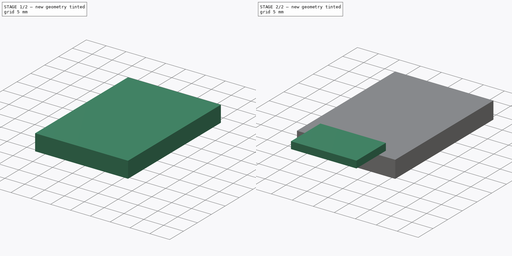
[diagram: build sequence overview — one tinted view per stage of 2, left to right]
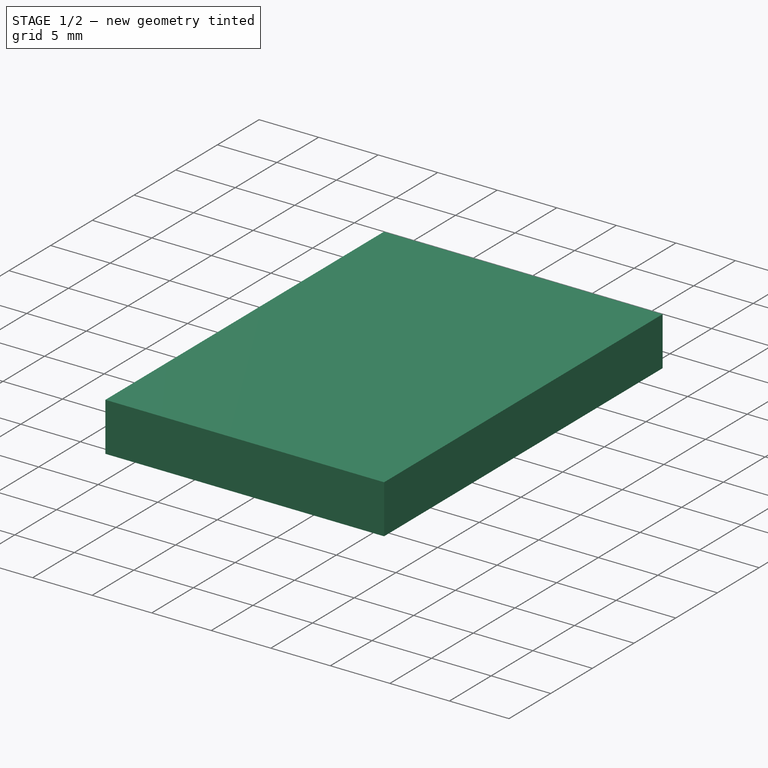
[diagram: stage 1 of 2 — iso view after this stage's code; geometry added in this stage tinted green]
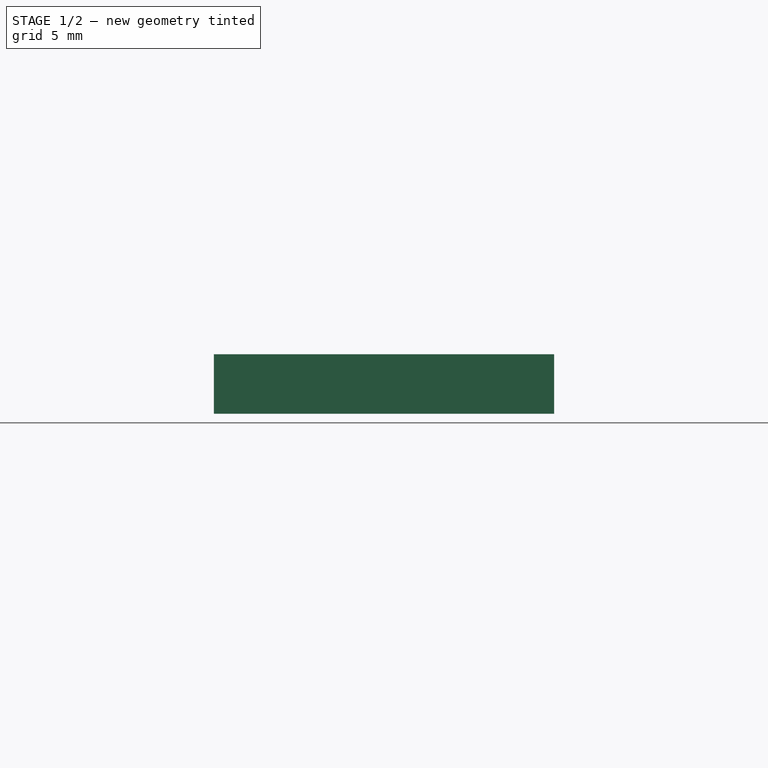
[diagram: stage 1 of 2 — front view after this stage's code; geometry added in this stage tinted green]
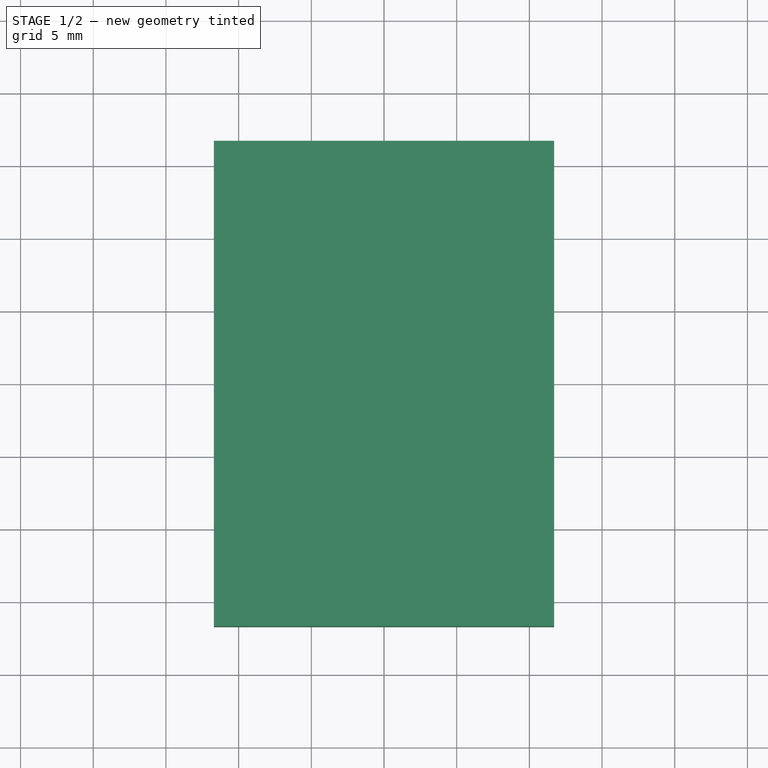
[diagram: stage 1 of 2 — top view after this stage's code; geometry added in this stage tinted green]
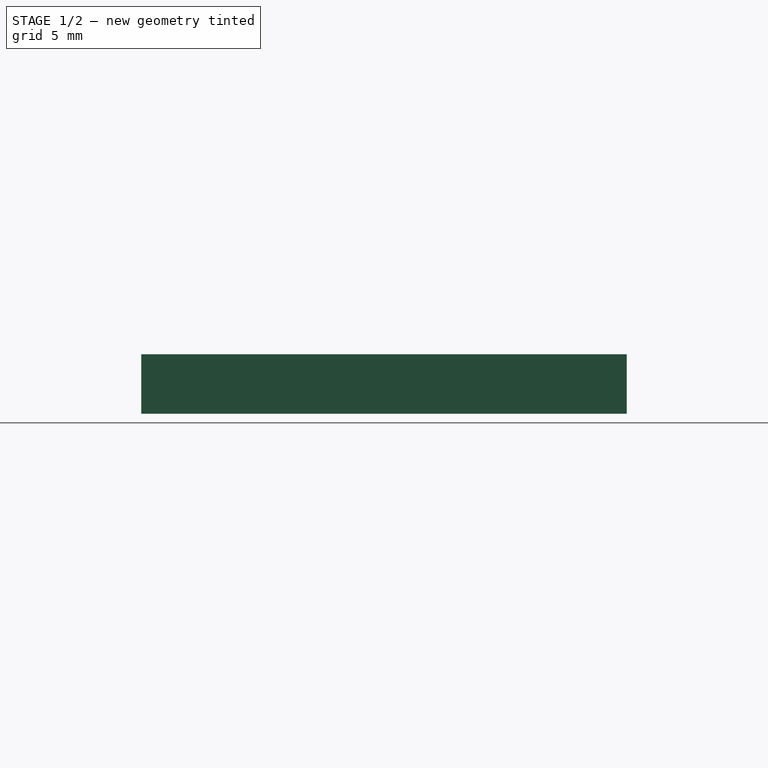
[diagram: stage 1 of 2 — right view after this stage's code; geometry added in this stage tinted green]
FCSTD DOCUMENT  (FreeCAD 0.16R5170 (Git))
Label: moteino
License: CreativeCommons Attribution-ShareAlike
LicenseURL: http://creativecommons.org/licenses/by-sa/4.0/
objects: Sketcher::SketchObject×2, PartDesign::Pad×2
note: 6 computed .brp shape members not serialized (recipe doc carries the construction recipe); baked Part::Feature solids carry a one-line shape summary decoded from their .brp

FEATURE [Sketcher::SketchObject] Sketch
  sketch-geometry (4):
    g0: LineSegment StartX=-11.7 StartY=16.7 StartZ=0 EndX=11.7 EndY=16.7 EndZ=0
    g1: LineSegment StartX=11.7 StartY=16.7 StartZ=0 EndX=11.7 EndY=-16.7 EndZ=0
    g2: LineSegment StartX=11.7 StartY=-16.7 StartZ=0 EndX=-11.7 EndY=-16.7 EndZ=0
    g3: LineSegment StartX=-11.7 StartY=-16.7 StartZ=0 EndX=-11.7 EndY=16.7 EndZ=0
  constraints (11):
    c: Coincident(g0,g1)
    c: Coincident(g1,g2)
    c: Coincident(g2,g3)
    c: Coincident(g3,g0)
    c: Horizontal(g0)
    c: Horizontal(g2)
    c: Vertical(g1)
    c: Vertical(g3)
    c: Symmetric(g1,g0,g-1)
    c: DistanceX(g0) = 23.4
    c: DistanceY(g1) = -33.4
FEATURE [PartDesign::Pad] Pad
  Length = 4.1
  Length2 = 100
  Sketch = -> Sketch
  Type = 0
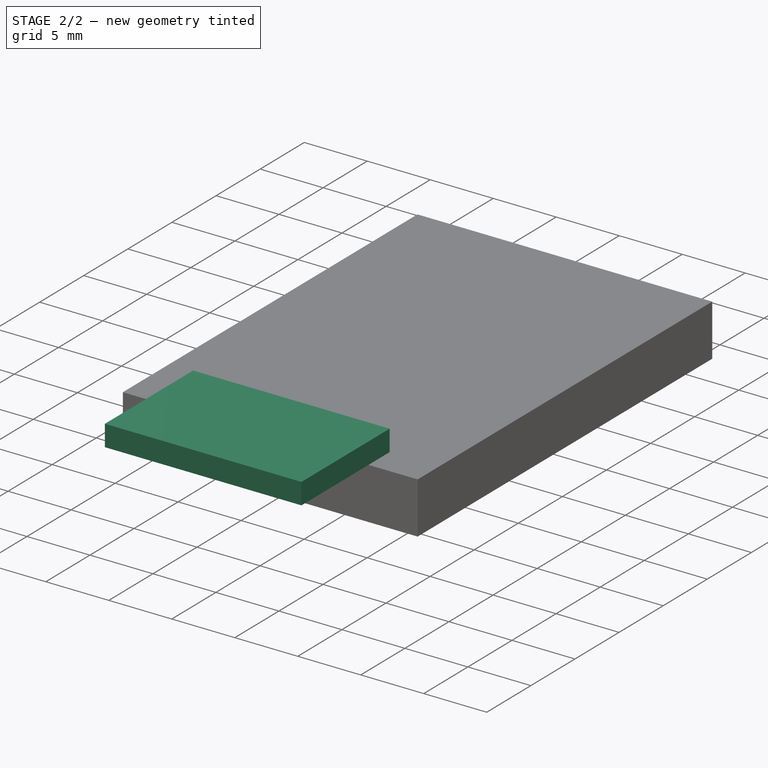
[diagram: stage 2 of 2 — iso view after this stage's code; geometry added in this stage tinted green]
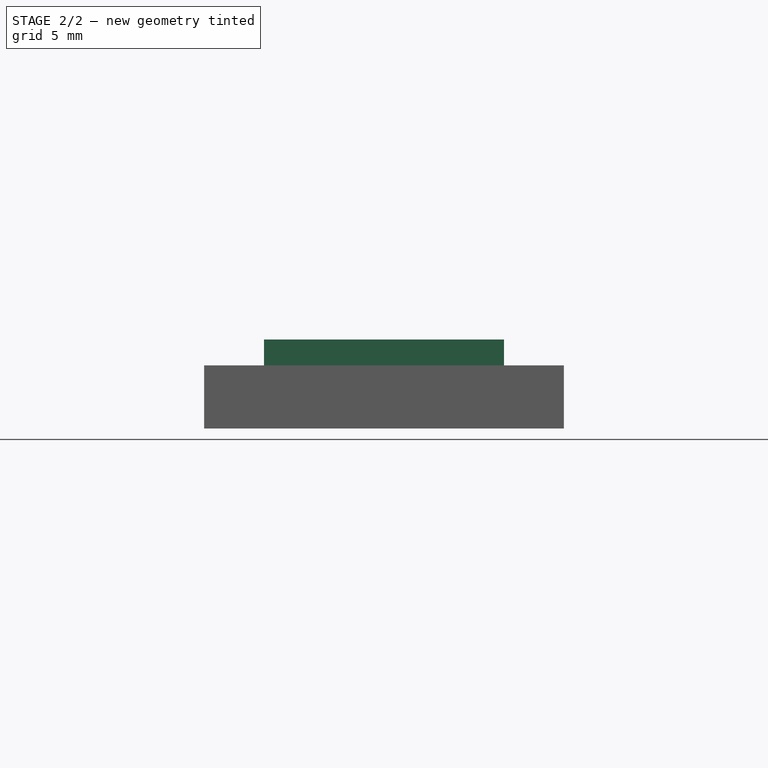
[diagram: stage 2 of 2 — front view after this stage's code; geometry added in this stage tinted green]
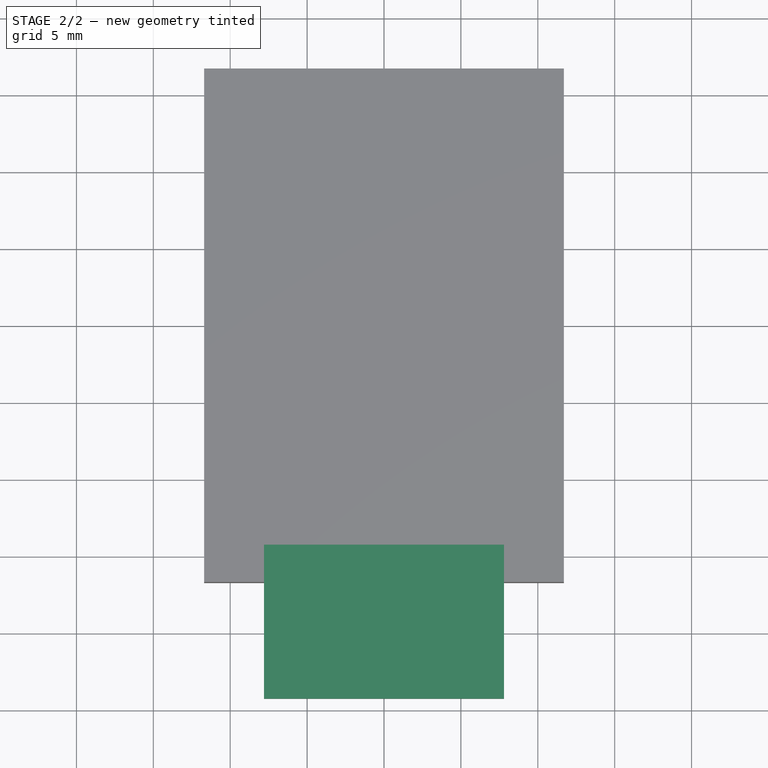
[diagram: stage 2 of 2 — top view after this stage's code; geometry added in this stage tinted green]
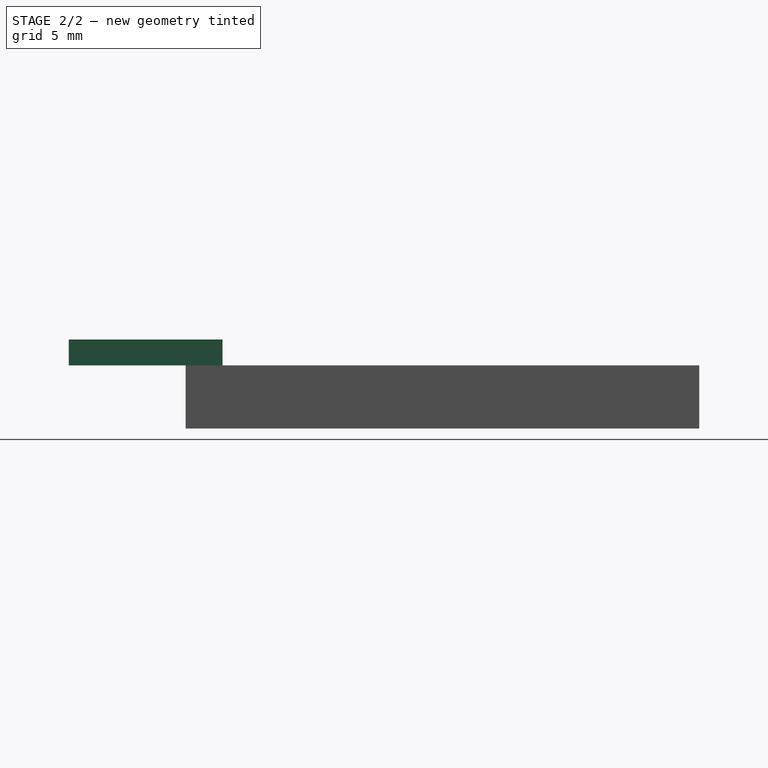
[diagram: stage 2 of 2 — right view after this stage's code; geometry added in this stage tinted green]
FEATURE [Sketcher::SketchObject] Sketch001
  ExternalGeometry = -> [Pad]
  Placement = pos=(0,0,4.1) rot=(0,0,1;0rad)
  Support = -> Pad [Face6]
  sketch-geometry (4):
    g0: LineSegment StartX=-7.8 StartY=-14.3 StartZ=0 EndX=7.8 EndY=-14.3 EndZ=0
    g1: LineSegment StartX=7.8 StartY=-14.3 StartZ=0 EndX=7.8 EndY=-24.3 EndZ=0
    g2: LineSegment StartX=7.8 StartY=-24.3 StartZ=0 EndX=-7.8 EndY=-24.3 EndZ=0
    g3: LineSegment StartX=-7.8 StartY=-24.3 StartZ=0 EndX=-7.8 EndY=-14.3 EndZ=0
  constraints (12):
    c: Coincident(g0,g1)
    c: Coincident(g1,g2)
    c: Coincident(g2,g3)
    c: Coincident(g3,g0)
    c: Horizontal(g0)
    c: Horizontal(g2)
    c: Vertical(g1)
    c: Vertical(g3)
    c: Symmetric(g0,g0,g-2)
    c: DistanceX(g0) = 15.6
    c: DistanceY(g1) = -10
    c: DistanceY(g-3,g0) = 2.4
FEATURE [PartDesign::Pad] Pad001
  Length = 1.68
  Length2 = 100
  Sketch = -> Sketch001
  Type = 0
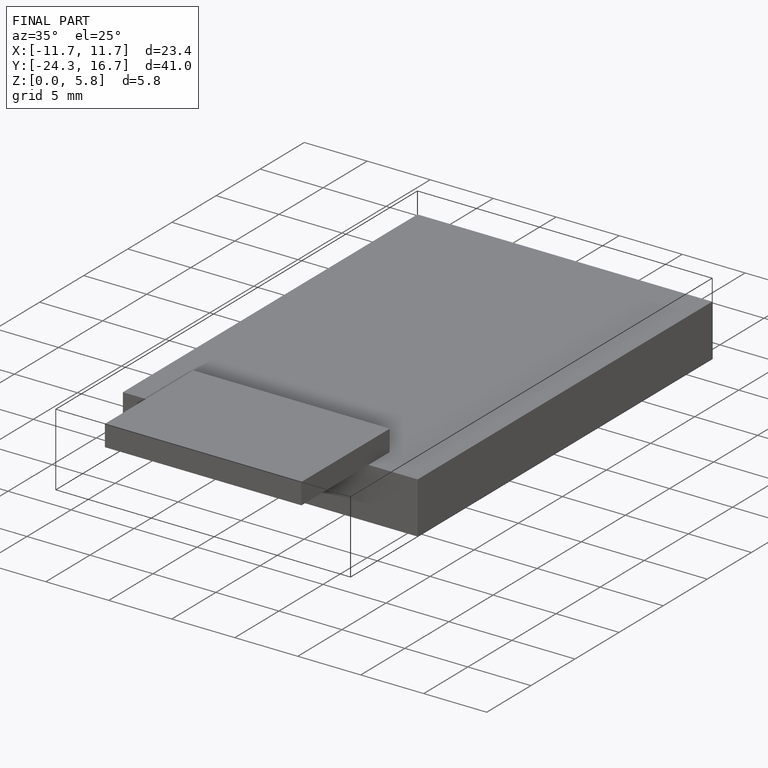
[diagram: finished part — iso view with bounding-box wireframe]
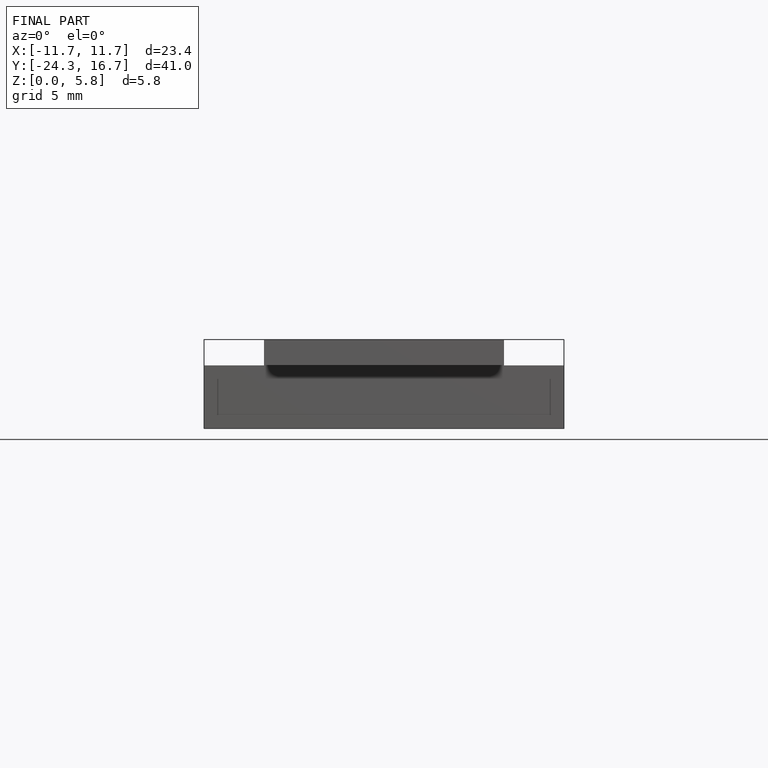
[diagram: finished part — front view with bounding-box wireframe]
